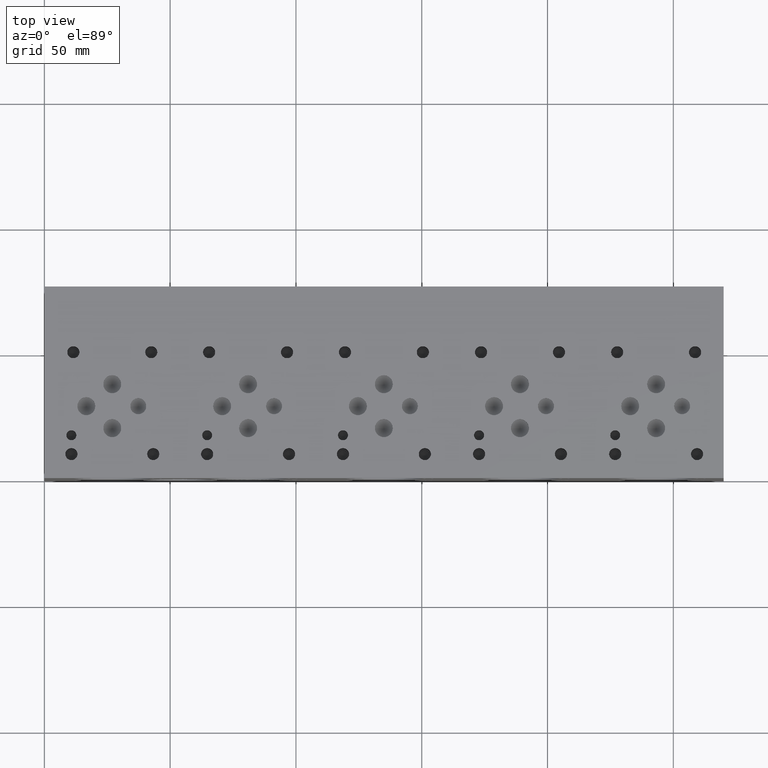
[diagram: clean part render]
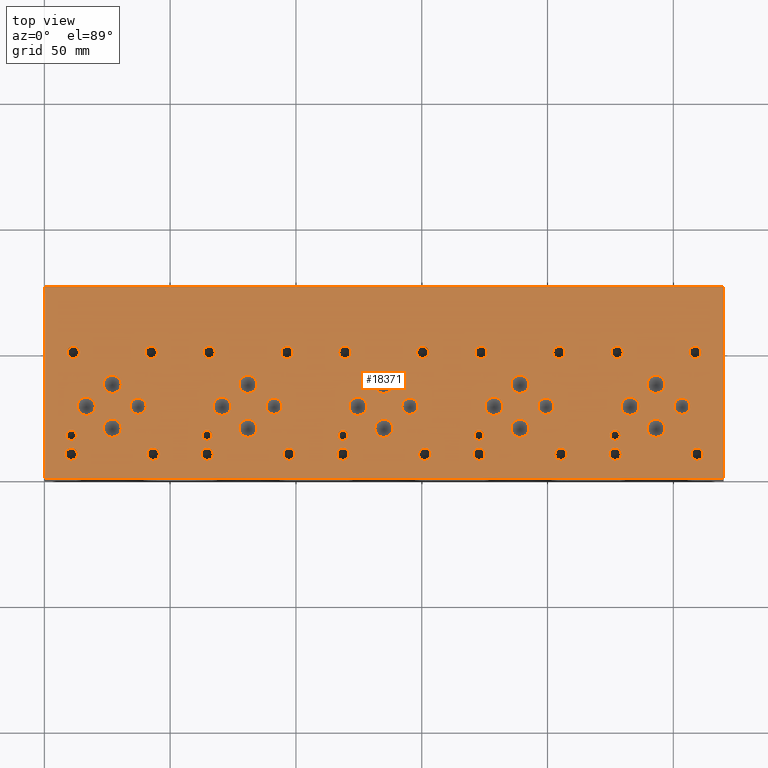
[diagram: same view with one face highlighted and labeled with its STEP entity id]
A machine part, top view. The second image highlights one B-rep face of the part: STEP entity #18371.
In plain terms, the highlighted planar face has unit normal (0, 0, 1).
Its self-contained STEP definition (entity closure, byte-faithful):
#627=CIRCLE('',#19332,1.9812);
#628=CIRCLE('',#19333,1.9812);
#631=CIRCLE('',#19338,1.9812);
#632=CIRCLE('',#19339,1.9812);
#635=CIRCLE('',#19344,1.9812);
#636=CIRCLE('',#19345,1.9812);
#639=CIRCLE('',#19350,1.9812);
#640=CIRCLE('',#19351,1.9812);
#643=CIRCLE('',#19356,3.175);
#644=CIRCLE('',#19357,3.175);
#647=CIRCLE('',#19362,3.175);
#648=CIRCLE('',#19363,3.175);
#651=CIRCLE('',#19368,3.175);
#652=CIRCLE('',#19369,3.175);
#655=CIRCLE('',#19374,3.175);
#656=CIRCLE('',#19375,3.175);
#659=CIRCLE('',#19380,3.175);
#660=CIRCLE('',#19381,3.175);
#663=CIRCLE('',#19386,3.5687);
#664=CIRCLE('',#19387,3.5687);
#667=CIRCLE('',#19392,3.5687);
#668=CIRCLE('',#19393,3.5687);
#671=CIRCLE('',#19398,3.5687);
#672=CIRCLE('',#19399,3.5687);
#675=CIRCLE('',#19404,3.5687);
#676=CIRCLE('',#19405,3.5687);
#679=CIRCLE('',#19410,3.5687);
#680=CIRCLE('',#19411,3.5687);
#683=CIRCLE('',#19416,3.5687);
#684=CIRCLE('',#19417,3.5687);
#687=CIRCLE('',#19422,3.5687);
#688=CIRCLE('',#19423,3.5687);
#691=CIRCLE('',#19428,3.5687);
#692=CIRCLE('',#19429,3.5687);
#695=CIRCLE('',#19434,3.5687);
#696=CIRCLE('',#19435,3.5687);
#699=CIRCLE('',#19440,3.5687);
#700=CIRCLE('',#19441,3.5687);
#703=CIRCLE('',#19446,3.5687);
#704=CIRCLE('',#19447,3.5687);
#707=CIRCLE('',#19452,3.5687);
#708=CIRCLE('',#19453,3.5687);
#711=CIRCLE('',#19458,3.5687);
#712=CIRCLE('',#19459,3.5687);
#715=CIRCLE('',#19464,3.5687);
#716=CIRCLE('',#19465,3.5687);
#719=CIRCLE('',#19470,3.5687);
#720=CIRCLE('',#19471,3.5687);
#723=CIRCLE('',#19476,1.9812);
#724=CIRCLE('',#19477,1.9812);
#730=CIRCLE('',#19486,2.413);
#731=CIRCLE('',#19487,2.413);
#737=CIRCLE('',#19497,2.413);
#738=CIRCLE('',#19498,2.413);
#744=CIRCLE('',#19508,2.413);
#745=CIRCLE('',#19509,2.413);
#751=CIRCLE('',#19519,2.413);
#752=CIRCLE('',#19520,2.413);
#758=CIRCLE('',#19530,2.413);
#759=CIRCLE('',#19531,2.413);
#765=CIRCLE('',#19541,2.413);
#766=CIRCLE('',#19542,2.413);
#772=CIRCLE('',#19552,2.413);
#773=CIRCLE('',#19553,2.413);
#779=CIRCLE('',#19563,2.413);
#780=CIRCLE('',#19564,2.413);
#786=CIRCLE('',#19574,2.413);
#787=CIRCLE('',#19575,2.413);
#793=CIRCLE('',#19585,2.413);
#794=CIRCLE('',#19586,2.413);
#800=CIRCLE('',#19596,2.413);
#801=CIRCLE('',#19597,2.413);
#807=CIRCLE('',#19607,2.413);
#808=CIRCLE('',#19608,2.413);
#814=CIRCLE('',#19618,2.413);
#815=CIRCLE('',#19619,2.413);
#821=CIRCLE('',#19629,2.413);
#822=CIRCLE('',#19630,2.413);
#828=CIRCLE('',#19640,2.413);
#829=CIRCLE('',#19641,2.413);
#835=CIRCLE('',#19651,2.413);
#836=CIRCLE('',#19652,2.413);
#842=CIRCLE('',#19662,2.413);
#843=CIRCLE('',#19663,2.413);
#849=CIRCLE('',#19673,2.413);
#850=CIRCLE('',#19674,2.413);
#856=CIRCLE('',#19684,2.413);
#857=CIRCLE('',#19685,2.413);
#863=CIRCLE('',#19695,2.413);
#864=CIRCLE('',#19696,2.413);
#1002=FACE_BOUND('',#3766,.T.);
#1003=FACE_BOUND('',#3767,.T.);
#1004=FACE_BOUND('',#3768,.T.);
#1005=FACE_BOUND('',#3769,.T.);
#1006=FACE_BOUND('',#3770,.T.);
#1007=FACE_BOUND('',#3771,.T.);
#1008=FACE_BOUND('',#3772,.T.);
#1009=FACE_BOUND('',#3773,.T.);
#1010=FACE_BOUND('',#3774,.T.);
#1011=FACE_BOUND('',#3775,.T.);
#1012=FACE_BOUND('',#3776,.T.);
#1013=FACE_BOUND('',#3777,.T.);
#1014=FACE_BOUND('',#3778,.T.);
#1015=FACE_BOUND('',#3779,.T.);
#1016=FACE_BOUND('',#3780,.T.);
#1017=FACE_BOUND('',#3781,.T.);
#1018=FACE_BOUND('',#3782,.T.);
#1019=FACE_BOUND('',#3783,.T.);
#1020=FACE_BOUND('',#3784,.T.);
#1021=FACE_BOUND('',#3785,.T.);
#1022=FACE_BOUND('',#3786,.T.);
#1023=FACE_BOUND('',#3787,.T.);
#1024=FACE_BOUND('',#3788,.T.);
#1025=FACE_BOUND('',#3789,.T.);
#1026=FACE_BOUND('',#3790,.T.);
#1027=FACE_BOUND('',#3791,.T.);
#1028=FACE_BOUND('',#3792,.T.);
#1029=FACE_BOUND('',#3793,.T.);
#1030=FACE_BOUND('',#3794,.T.);
#1031=FACE_BOUND('',#3795,.T.);
#1032=FACE_BOUND('',#3796,.T.);
#1033=FACE_BOUND('',#3797,.T.);
#1034=FACE_BOUND('',#3798,.T.);
#1035=FACE_BOUND('',#3799,.T.);
#1036=FACE_BOUND('',#3800,.T.);
#1037=FACE_BOUND('',#3801,.T.);
#1038=FACE_BOUND('',#3802,.T.);
#1039=FACE_BOUND('',#3803,.T.);
#1040=FACE_BOUND('',#3804,.T.);
#1041=FACE_BOUND('',#3805,.T.);
#1042=FACE_BOUND('',#3806,.T.);
#1043=FACE_BOUND('',#3807,.T.);
#1044=FACE_BOUND('',#3808,.T.);
#1045=FACE_BOUND('',#3809,.T.);
#1046=FACE_BOUND('',#3810,.T.);
#2671=FACE_OUTER_BOUND('',#3765,.T.);
#3765=EDGE_LOOP('',(#16249,#16250,#16251,#16252));
#3766=EDGE_LOOP('',(#16253,#16254));
#3767=EDGE_LOOP('',(#16255,#16256));
#3768=EDGE_LOOP('',(#16257,#16258));
#3769=EDGE_LOOP('',(#16259,#16260));
#3770=EDGE_LOOP('',(#16261,#16262));
#3771=EDGE_LOOP('',(#16263,#16264));
#3772=EDGE_LOOP('',(#16265,#16266));
#3773=EDGE_LOOP('',(#16267,#16268));
#3774=EDGE_LOOP('',(#16269,#16270));
#3775=EDGE_LOOP('',(#16271,#16272));
#3776=EDGE_LOOP('',(#16273,#16274));
#3777=EDGE_LOOP('',(#16275,#16276));
#3778=EDGE_LOOP('',(#16277,#16278));
#3779=EDGE_LOOP('',(#16279,#16280));
#3780=EDGE_LOOP('',(#16281,#16282));
#3781=EDGE_LOOP('',(#16283,#16284));
#3782=EDGE_LOOP('',(#16285,#16286));
#3783=EDGE_LOOP('',(#16287,#16288));
#3784=EDGE_LOOP('',(#16289,#16290));
#3785=EDGE_LOOP('',(#16291,#16292));
#3786=EDGE_LOOP('',(#16293,#16294));
#3787=EDGE_LOOP('',(#16295,#16296));
#3788=EDGE_LOOP('',(#16297,#16298));
#3789=EDGE_LOOP('',(#16299,#16300));
#3790=EDGE_LOOP('',(#16301,#16302));
#3791=EDGE_LOOP('',(#16303,#16304));
#3792=EDGE_LOOP('',(#16305,#16306));
#3793=EDGE_LOOP('',(#16307,#16308));
#3794=EDGE_LOOP('',(#16309,#16310));
#3795=EDGE_LOOP('',(#16311,#16312));
#3796=EDGE_LOOP('',(#16313,#16314));
#3797=EDGE_LOOP('',(#16315,#16316));
#3798=EDGE_LOOP('',(#16317,#16318));
#3799=EDGE_LOOP('',(#16319,#16320));
#3800=EDGE_LOOP('',(#16321,#16322));
#3801=EDGE_LOOP('',(#16323,#16324));
#3802=EDGE_LOOP('',(#16325,#16326));
#3803=EDGE_LOOP('',(#16327,#16328));
#3804=EDGE_LOOP('',(#16329,#16330));
#3805=EDGE_LOOP('',(#16331,#16332));
#3806=EDGE_LOOP('',(#16333,#16334));
#3807=EDGE_LOOP('',(#16335,#16336));
#3808=EDGE_LOOP('',(#16337,#16338));
#3809=EDGE_LOOP('',(#16339,#16340));
#3810=EDGE_LOOP('',(#16341,#16342));
#3870=LINE('',#24130,#5402);
#3930=LINE('',#24405,#5462);
#4243=LINE('',#27011,#5775);
#5343=LINE('',#32073,#6875);
#5402=VECTOR('',#19802,10.);
#5462=VECTOR('',#19916,10.);
#5775=VECTOR('',#20399,10.);
#6875=VECTOR('',#23863,10.);
#6926=VERTEX_POINT('',#24127);
#6927=VERTEX_POINT('',#24129);
#6986=VERTEX_POINT('',#24402);
#6987=VERTEX_POINT('',#24404);
#8382=VERTEX_POINT('',#31313);
#8383=VERTEX_POINT('',#31314);
#8387=VERTEX_POINT('',#31326);
#8388=VERTEX_POINT('',#31327);
#8392=VERTEX_POINT('',#31339);
#8393=VERTEX_POINT('',#31340);
#8397=VERTEX_POINT('',#31352);
#8398=VERTEX_POINT('',#31353);
#8402=VERTEX_POINT('',#31365);
#8403=VERTEX_POINT('',#31366);
#8407=VERTEX_POINT('',#31378);
#8408=VERTEX_POINT('',#31379);
#8412=VERTEX_POINT('',#31391);
#8413=VERTEX_POINT('',#31392);
#8417=VERTEX_POINT('',#31404);
#8418=VERTEX_POINT('',#31405);
#8422=VERTEX_POINT('',#31417);
#8423=VERTEX_POINT('',#31418);
#8427=VERTEX_POINT('',#31430);
#8428=VERTEX_POINT('',#31431);
#8432=VERTEX_POINT('',#31443);
#8433=VERTEX_POINT('',#31444);
#8437=VERTEX_POINT('',#31456);
#8438=VERTEX_POINT('',#31457);
#8442=VERTEX_POINT('',#31469);
#8443=VERTEX_POINT('',#31470);
#8447=VERTEX_POINT('',#31482);
#8448=VERTEX_POINT('',#31483);
#8452=VERTEX_POINT('',#31495);
#8453=VERTEX_POINT('',#31496);
#8457=VERTEX_POINT('',#31508);
#8458=VERTEX_POINT('',#31509);
#8462=VERTEX_POINT('',#31521);
#8463=VERTEX_POINT('',#31522);
#8467=VERTEX_POINT('',#31534);
#8468=VERTEX_POINT('',#31535);
#8472=VERTEX_POINT('',#31547);
#8473=VERTEX_POINT('',#31548);
#8477=VERTEX_POINT('',#31560);
#8478=VERTEX_POINT('',#31561);
#8482=VERTEX_POINT('',#31573);
#8483=VERTEX_POINT('',#31574);
#8487=VERTEX_POINT('',#31586);
#8488=VERTEX_POINT('',#31587);
#8492=VERTEX_POINT('',#31599);
#8493=VERTEX_POINT('',#31600);
#8497=VERTEX_POINT('',#31612);
#8498=VERTEX_POINT('',#31613);
#8502=VERTEX_POINT('',#31625);
#8503=VERTEX_POINT('',#31626);
#8510=VERTEX_POINT('',#31645);
#8511=VERTEX_POINT('',#31646);
#8518=VERTEX_POINT('',#31667);
#8519=VERTEX_POINT('',#31668);
#8526=VERTEX_POINT('',#31689);
#8527=VERTEX_POINT('',#31690);
#8534=VERTEX_POINT('',#31711);
#8535=VERTEX_POINT('',#31712);
#8542=VERTEX_POINT('',#31733);
#8543=VERTEX_POINT('',#31734);
#8550=VERTEX_POINT('',#31755);
#8551=VERTEX_POINT('',#31756);
#8558=VERTEX_POINT('',#31777);
#8559=VERTEX_POINT('',#31778);
#8566=VERTEX_POINT('',#31799);
#8567=VERTEX_POINT('',#31800);
#8574=VERTEX_POINT('',#31821);
#8575=VERTEX_POINT('',#31822);
#8582=VERTEX_POINT('',#31843);
#8583=VERTEX_POINT('',#31844);
#8590=VERTEX_POINT('',#31865);
#8591=VERTEX_POINT('',#31866);
#8598=VERTEX_POINT('',#31887);
#8599=VERTEX_POINT('',#31888);
#8606=VERTEX_POINT('',#31909);
#8607=VERTEX_POINT('',#31910);
#8614=VERTEX_POINT('',#31931);
#8615=VERTEX_POINT('',#31932);
#8622=VERTEX_POINT('',#31953);
#8623=VERTEX_POINT('',#31954);
#8630=VERTEX_POINT('',#31975);
#8631=VERTEX_POINT('',#31976);
#8638=VERTEX_POINT('',#31997);
#8639=VERTEX_POINT('',#31998);
#8646=VERTEX_POINT('',#32019);
#8647=VERTEX_POINT('',#32020);
#8654=VERTEX_POINT('',#32041);
#8655=VERTEX_POINT('',#32042);
#8662=VERTEX_POINT('',#32063);
#8663=VERTEX_POINT('',#32064);
#8738=EDGE_CURVE('',#6927,#6926,#3870,.T.);
#8822=EDGE_CURVE('',#6987,#6986,#3930,.T.);
#9373=EDGE_CURVE('',#6986,#6927,#4243,.T.);
#10876=EDGE_CURVE('',#8382,#8383,#627,.T.);
#10877=EDGE_CURVE('',#8383,#8382,#628,.T.);
#10882=EDGE_CURVE('',#8387,#8388,#631,.T.);
#10883=EDGE_CURVE('',#8388,#8387,#632,.T.);
#10888=EDGE_CURVE('',#8392,#8393,#635,.T.);
#10889=EDGE_CURVE('',#8393,#8392,#636,.T.);
#10894=EDGE_CURVE('',#8397,#8398,#639,.T.);
#10895=EDGE_CURVE('',#8398,#8397,#640,.T.);
#10900=EDGE_CURVE('',#8402,#8403,#643,.T.);
#10901=EDGE_CURVE('',#8403,#8402,#644,.T.);
#10906=EDGE_CURVE('',#8407,#8408,#647,.T.);
#10907=EDGE_CURVE('',#8408,#8407,#648,.T.);
#10912=EDGE_CURVE('',#8412,#8413,#651,.T.);
#10913=EDGE_CURVE('',#8413,#8412,#652,.T.);
#10918=EDGE_CURVE('',#8417,#8418,#655,.T.);
#10919=EDGE_CURVE('',#8418,#8417,#656,.T.);
#10924=EDGE_CURVE('',#8422,#8423,#659,.T.);
#10925=EDGE_CURVE('',#8423,#8422,#660,.T.);
#10930=EDGE_CURVE('',#8427,#8428,#663,.T.);
#10931=EDGE_CURVE('',#8428,#8427,#664,.T.);
#10936=EDGE_CURVE('',#8432,#8433,#667,.T.);
#10937=EDGE_CURVE('',#8433,#8432,#668,.T.);
#10942=EDGE_CURVE('',#8437,#8438,#671,.T.);
#10943=EDGE_CURVE('',#8438,#8437,#672,.T.);
#10948=EDGE_CURVE('',#8442,#8443,#675,.T.);
#10949=EDGE_CURVE('',#8443,#8442,#676,.T.);
#10954=EDGE_CURVE('',#8447,#8448,#679,.T.);
#10955=EDGE_CURVE('',#8448,#8447,#680,.T.);
#10960=EDGE_CURVE('',#8452,#8453,#683,.T.);
#10961=EDGE_CURVE('',#8453,#8452,#684,.T.);
#10966=EDGE_CURVE('',#8457,#8458,#687,.T.);
#10967=EDGE_CURVE('',#8458,#8457,#688,.T.);
#10972=EDGE_CURVE('',#8462,#8463,#691,.T.);
#10973=EDGE_CURVE('',#8463,#8462,#692,.T.);
#10978=EDGE_CURVE('',#8467,#8468,#695,.T.);
#10979=EDGE_CURVE('',#8468,#8467,#696,.T.);
#10984=EDGE_CURVE('',#8472,#8473,#699,.T.);
#10985=EDGE_CURVE('',#8473,#8472,#700,.T.);
#10990=EDGE_CURVE('',#8477,#8478,#703,.T.);
#10991=EDGE_CURVE('',#8478,#8477,#704,.T.);
#10996=EDGE_CURVE('',#8482,#8483,#707,.T.);
#10997=EDGE_CURVE('',#8483,#8482,#708,.T.);
#11002=EDGE_CURVE('',#8487,#8488,#711,.T.);
#11003=EDGE_CURVE('',#8488,#8487,#712,.T.);
#11008=EDGE_CURVE('',#8492,#8493,#715,.T.);
#11009=EDGE_CURVE('',#8493,#8492,#716,.T.);
#11014=EDGE_CURVE('',#8497,#8498,#719,.T.);
#11015=EDGE_CURVE('',#8498,#8497,#720,.T.);
#11020=EDGE_CURVE('',#8502,#8503,#723,.T.);
#11021=EDGE_CURVE('',#8503,#8502,#724,.T.);
#11029=EDGE_CURVE('',#8510,#8511,#730,.T.);
#11030=EDGE_CURVE('',#8511,#8510,#731,.T.);
#11039=EDGE_CURVE('',#8518,#8519,#737,.T.);
#11040=EDGE_CURVE('',#8519,#8518,#738,.T.);
#11049=EDGE_CURVE('',#8526,#8527,#744,.T.);
#11050=EDGE_CURVE('',#8527,#8526,#745,.T.);
#11059=EDGE_CURVE('',#8534,#8535,#751,.T.);
#11060=EDGE_CURVE('',#8535,#8534,#752,.T.);
#11069=EDGE_CURVE('',#8542,#8543,#758,.T.);
#11070=EDGE_CURVE('',#8543,#8542,#759,.T.);
#11079=EDGE_CURVE('',#8550,#8551,#765,.T.);
#11080=EDGE_CURVE('',#8551,#8550,#766,.T.);
#11089=EDGE_CURVE('',#8558,#8559,#772,.T.);
#11090=EDGE_CURVE('',#8559,#8558,#773,.T.);
#11099=EDGE_CURVE('',#8566,#8567,#779,.T.);
#11100=EDGE_CURVE('',#8567,#8566,#780,.T.);
#11109=EDGE_CURVE('',#8574,#8575,#786,.T.);
#11110=EDGE_CURVE('',#8575,#8574,#787,.T.);
#11119=EDGE_CURVE('',#8582,#8583,#793,.T.);
#11120=EDGE_CURVE('',#8583,#8582,#794,.T.);
#11129=EDGE_CURVE('',#8590,#8591,#800,.T.);
#11130=EDGE_CURVE('',#8591,#8590,#801,.T.);
#11139=EDGE_CURVE('',#8598,#8599,#807,.T.);
#11140=EDGE_CURVE('',#8599,#8598,#808,.T.);
#11149=EDGE_CURVE('',#8606,#8607,#814,.T.);
#11150=EDGE_CURVE('',#8607,#8606,#815,.T.);
#11159=EDGE_CURVE('',#8614,#8615,#821,.T.);
#11160=EDGE_CURVE('',#8615,#8614,#822,.T.);
#11169=EDGE_CURVE('',#8622,#8623,#828,.T.);
#11170=EDGE_CURVE('',#8623,#8622,#829,.T.);
#11179=EDGE_CURVE('',#8630,#8631,#835,.T.);
#11180=EDGE_CURVE('',#8631,#8630,#836,.T.);
#11189=EDGE_CURVE('',#8638,#8639,#842,.T.);
#11190=EDGE_CURVE('',#8639,#8638,#843,.T.);
#11199=EDGE_CURVE('',#8646,#8647,#849,.T.);
#11200=EDGE_CURVE('',#8647,#8646,#850,.T.);
#11209=EDGE_CURVE('',#8654,#8655,#856,.T.);
#11210=EDGE_CURVE('',#8655,#8654,#857,.T.);
#11219=EDGE_CURVE('',#8662,#8663,#863,.T.);
#11220=EDGE_CURVE('',#8663,#8662,#864,.T.);
#11224=EDGE_CURVE('',#6926,#6987,#5343,.T.);
#16249=ORIENTED_EDGE('',*,*,#9373,.T.);
#16250=ORIENTED_EDGE('',*,*,#8738,.T.);
#16251=ORIENTED_EDGE('',*,*,#11224,.T.);
#16252=ORIENTED_EDGE('',*,*,#8822,.T.);
#16253=ORIENTED_EDGE('',*,*,#10876,.T.);
#16254=ORIENTED_EDGE('',*,*,#10877,.T.);
#16255=ORIENTED_EDGE('',*,*,#10882,.T.);
#16256=ORIENTED_EDGE('',*,*,#10883,.T.);
#16257=ORIENTED_EDGE('',*,*,#10888,.T.);
#16258=ORIENTED_EDGE('',*,*,#10889,.T.);
#16259=ORIENTED_EDGE('',*,*,#10894,.T.);
#16260=ORIENTED_EDGE('',*,*,#10895,.T.);
#16261=ORIENTED_EDGE('',*,*,#10900,.T.);
#16262=ORIENTED_EDGE('',*,*,#10901,.T.);
#16263=ORIENTED_EDGE('',*,*,#10906,.T.);
#16264=ORIENTED_EDGE('',*,*,#10907,.T.);
#16265=ORIENTED_EDGE('',*,*,#10912,.T.);
#16266=ORIENTED_EDGE('',*,*,#10913,.T.);
#16267=ORIENTED_EDGE('',*,*,#10918,.T.);
#16268=ORIENTED_EDGE('',*,*,#10919,.T.);
#16269=ORIENTED_EDGE('',*,*,#10924,.T.);
#16270=ORIENTED_EDGE('',*,*,#10925,.T.);
#16271=ORIENTED_EDGE('',*,*,#10930,.T.);
#16272=ORIENTED_EDGE('',*,*,#10931,.T.);
#16273=ORIENTED_EDGE('',*,*,#10936,.T.);
#16274=ORIENTED_EDGE('',*,*,#10937,.T.);
#16275=ORIENTED_EDGE('',*,*,#10942,.T.);
#16276=ORIENTED_EDGE('',*,*,#10943,.T.);
#16277=ORIENTED_EDGE('',*,*,#10948,.T.);
#16278=ORIENTED_EDGE('',*,*,#10949,.T.);
#16279=ORIENTED_EDGE('',*,*,#10954,.T.);
#16280=ORIENTED_EDGE('',*,*,#10955,.T.);
#16281=ORIENTED_EDGE('',*,*,#10960,.T.);
#16282=ORIENTED_EDGE('',*,*,#10961,.T.);
#16283=ORIENTED_EDGE('',*,*,#10966,.T.);
#16284=ORIENTED_EDGE('',*,*,#10967,.T.);
#16285=ORIENTED_EDGE('',*,*,#10972,.T.);
#16286=ORIENTED_EDGE('',*,*,#10973,.T.);
#16287=ORIENTED_EDGE('',*,*,#10978,.T.);
#16288=ORIENTED_EDGE('',*,*,#10979,.T.);
#16289=ORIENTED_EDGE('',*,*,#10984,.T.);
#16290=ORIENTED_EDGE('',*,*,#10985,.T.);
#16291=ORIENTED_EDGE('',*,*,#10990,.T.);
#16292=ORIENTED_EDGE('',*,*,#10991,.T.);
#16293=ORIENTED_EDGE('',*,*,#10996,.T.);
#16294=ORIENTED_EDGE('',*,*,#10997,.T.);
#16295=ORIENTED_EDGE('',*,*,#11002,.T.);
#16296=ORIENTED_EDGE('',*,*,#11003,.T.);
#16297=ORIENTED_EDGE('',*,*,#11008,.T.);
#16298=ORIENTED_EDGE('',*,*,#11009,.T.);
#16299=ORIENTED_EDGE('',*,*,#11014,.T.);
#16300=ORIENTED_EDGE('',*,*,#11015,.T.);
#16301=ORIENTED_EDGE('',*,*,#11020,.T.);
#16302=ORIENTED_EDGE('',*,*,#11021,.T.);
#16303=ORIENTED_EDGE('',*,*,#11029,.T.);
#16304=ORIENTED_EDGE('',*,*,#11030,.T.);
#16305=ORIENTED_EDGE('',*,*,#11039,.T.);
#16306=ORIENTED_EDGE('',*,*,#11040,.T.);
#16307=ORIENTED_EDGE('',*,*,#11049,.T.);
#16308=ORIENTED_EDGE('',*,*,#11050,.T.);
#16309=ORIENTED_EDGE('',*,*,#11059,.T.);
#16310=ORIENTED_EDGE('',*,*,#11060,.T.);
#16311=ORIENTED_EDGE('',*,*,#11069,.T.);
#16312=ORIENTED_EDGE('',*,*,#11070,.T.);
#16313=ORIENTED_EDGE('',*,*,#11079,.T.);
#16314=ORIENTED_EDGE('',*,*,#11080,.T.);
#16315=ORIENTED_EDGE('',*,*,#11089,.T.);
#16316=ORIENTED_EDGE('',*,*,#11090,.T.);
#16317=ORIENTED_EDGE('',*,*,#11099,.T.);
#16318=ORIENTED_EDGE('',*,*,#11100,.T.);
#16319=ORIENTED_EDGE('',*,*,#11109,.T.);
#16320=ORIENTED_EDGE('',*,*,#11110,.T.);
#16321=ORIENTED_EDGE('',*,*,#11119,.T.);
#16322=ORIENTED_EDGE('',*,*,#11120,.T.);
#16323=ORIENTED_EDGE('',*,*,#11129,.T.);
#16324=ORIENTED_EDGE('',*,*,#11130,.T.);
#16325=ORIENTED_EDGE('',*,*,#11139,.T.);
#16326=ORIENTED_EDGE('',*,*,#11140,.T.);
#16327=ORIENTED_EDGE('',*,*,#11149,.T.);
#16328=ORIENTED_EDGE('',*,*,#11150,.T.);
#16329=ORIENTED_EDGE('',*,*,#11159,.T.);
#16330=ORIENTED_EDGE('',*,*,#11160,.T.);
#16331=ORIENTED_EDGE('',*,*,#11169,.T.);
#16332=ORIENTED_EDGE('',*,*,#11170,.T.);
#16333=ORIENTED_EDGE('',*,*,#11179,.T.);
#16334=ORIENTED_EDGE('',*,*,#11180,.T.);
#16335=ORIENTED_EDGE('',*,*,#11189,.T.);
#16336=ORIENTED_EDGE('',*,*,#11190,.T.);
#16337=ORIENTED_EDGE('',*,*,#11199,.T.);
#16338=ORIENTED_EDGE('',*,*,#11200,.T.);
#16339=ORIENTED_EDGE('',*,*,#11209,.T.);
#16340=ORIENTED_EDGE('',*,*,#11210,.T.);
#16341=ORIENTED_EDGE('',*,*,#11219,.T.);
#16342=ORIENTED_EDGE('',*,*,#11220,.T.);
#16811=PLANE('',#19702);
#18371=ADVANCED_FACE('',(#2671,#1002,#1003,#1004,#1005,#1006,#1007,#1008,
#1009,#1010,#1011,#1012,#1013,#1014,#1015,#1016,#1017,#1018,#1019,#1020,
#1021,#1022,#1023,#1024,#1025,#1026,#1027,#1028,#1029,#1030,#1031,#1032,
#1033,#1034,#1035,#1036,#1037,#1038,#1039,#1040,#1041,#1042,#1043,#1044,
#1045,#1046),#16811,.T.);
#19332=AXIS2_PLACEMENT_3D('',#31315,#23017,#23018);
#19333=AXIS2_PLACEMENT_3D('',#31316,#23019,#23020);
#19338=AXIS2_PLACEMENT_3D('',#31328,#23031,#23032);
#19339=AXIS2_PLACEMENT_3D('',#31329,#23033,#23034);
#19344=AXIS2_PLACEMENT_3D('',#31341,#23045,#23046);
#19345=AXIS2_PLACEMENT_3D('',#31342,#23047,#23048);
#19350=AXIS2_PLACEMENT_3D('',#31354,#23059,#23060);
#19351=AXIS2_PLACEMENT_3D('',#31355,#23061,#23062);
#19356=AXIS2_PLACEMENT_3D('',#31367,#23073,#23074);
#19357=AXIS2_PLACEMENT_3D('',#31368,#23075,#23076);
#19362=AXIS2_PLACEMENT_3D('',#31380,#23087,#23088);
#19363=AXIS2_PLACEMENT_3D('',#31381,#23089,#23090);
#19368=AXIS2_PLACEMENT_3D('',#31393,#23101,#23102);
#19369=AXIS2_PLACEMENT_3D('',#31394,#23103,#23104);
#19374=AXIS2_PLACEMENT_3D('',#31406,#23115,#23116);
#19375=AXIS2_PLACEMENT_3D('',#31407,#23117,#23118);
#19380=AXIS2_PLACEMENT_3D('',#31419,#23129,#23130);
#19381=AXIS2_PLACEMENT_3D('',#31420,#23131,#23132);
#19386=AXIS2_PLACEMENT_3D('',#31432,#23143,#23144);
#19387=AXIS2_PLACEMENT_3D('',#31433,#23145,#23146);
#19392=AXIS2_PLACEMENT_3D('',#31445,#23157,#23158);
#19393=AXIS2_PLACEMENT_3D('',#31446,#23159,#23160);
#19398=AXIS2_PLACEMENT_3D('',#31458,#23171,#23172);
#19399=AXIS2_PLACEMENT_3D('',#31459,#23173,#23174);
#19404=AXIS2_PLACEMENT_3D('',#31471,#23185,#23186);
#19405=AXIS2_PLACEMENT_3D('',#31472,#23187,#23188);
#19410=AXIS2_PLACEMENT_3D('',#31484,#23199,#23200);
#19411=AXIS2_PLACEMENT_3D('',#31485,#23201,#23202);
#19416=AXIS2_PLACEMENT_3D('',#31497,#23213,#23214);
#19417=AXIS2_PLACEMENT_3D('',#31498,#23215,#23216);
#19422=AXIS2_PLACEMENT_3D('',#31510,#23227,#23228);
#19423=AXIS2_PLACEMENT_3D('',#31511,#23229,#23230);
#19428=AXIS2_PLACEMENT_3D('',#31523,#23241,#23242);
#19429=AXIS2_PLACEMENT_3D('',#31524,#23243,#23244);
#19434=AXIS2_PLACEMENT_3D('',#31536,#23255,#23256);
#19435=AXIS2_PLACEMENT_3D('',#31537,#23257,#23258);
#19440=AXIS2_PLACEMENT_3D('',#31549,#23269,#23270);
#19441=AXIS2_PLACEMENT_3D('',#31550,#23271,#23272);
#19446=AXIS2_PLACEMENT_3D('',#31562,#23283,#23284);
#19447=AXIS2_PLACEMENT_3D('',#31563,#23285,#23286);
#19452=AXIS2_PLACEMENT_3D('',#31575,#23297,#23298);
#19453=AXIS2_PLACEMENT_3D('',#31576,#23299,#23300);
#19458=AXIS2_PLACEMENT_3D('',#31588,#23311,#23312);
#19459=AXIS2_PLACEMENT_3D('',#31589,#23313,#23314);
#19464=AXIS2_PLACEMENT_3D('',#31601,#23325,#23326);
#19465=AXIS2_PLACEMENT_3D('',#31602,#23327,#23328);
#19470=AXIS2_PLACEMENT_3D('',#31614,#23339,#23340);
#19471=AXIS2_PLACEMENT_3D('',#31615,#23341,#23342);
#19476=AXIS2_PLACEMENT_3D('',#31627,#23353,#23354);
#19477=AXIS2_PLACEMENT_3D('',#31628,#23355,#23356);
#19486=AXIS2_PLACEMENT_3D('',#31647,#23375,#23376);
#19487=AXIS2_PLACEMENT_3D('',#31648,#23377,#23378);
#19497=AXIS2_PLACEMENT_3D('',#31669,#23400,#23401);
#19498=AXIS2_PLACEMENT_3D('',#31670,#23402,#23403);
#19508=AXIS2_PLACEMENT_3D('',#31691,#23425,#23426);
#19509=AXIS2_PLACEMENT_3D('',#31692,#23427,#23428);
#19519=AXIS2_PLACEMENT_3D('',#31713,#23450,#23451);
#19520=AXIS2_PLACEMENT_3D('',#31714,#23452,#23453);
#19530=AXIS2_PLACEMENT_3D('',#31735,#23475,#23476);
#19531=AXIS2_PLACEMENT_3D('',#31736,#23477,#23478);
#19541=AXIS2_PLACEMENT_3D('',#31757,#23500,#23501);
#19542=AXIS2_PLACEMENT_3D('',#31758,#23502,#23503);
#19552=AXIS2_PLACEMENT_3D('',#31779,#23525,#23526);
#19553=AXIS2_PLACEMENT_3D('',#31780,#23527,#23528);
#19563=AXIS2_PLACEMENT_3D('',#31801,#23550,#23551);
#19564=AXIS2_PLACEMENT_3D('',#31802,#23552,#23553);
#19574=AXIS2_PLACEMENT_3D('',#31823,#23575,#23576);
#19575=AXIS2_PLACEMENT_3D('',#31824,#23577,#23578);
#19585=AXIS2_PLACEMENT_3D('',#31845,#23600,#23601);
#19586=AXIS2_PLACEMENT_3D('',#31846,#23602,#23603);
#19596=AXIS2_PLACEMENT_3D('',#31867,#23625,#23626);
#19597=AXIS2_PLACEMENT_3D('',#31868,#23627,#23628);
#19607=AXIS2_PLACEMENT_3D('',#31889,#23650,#23651);
#19608=AXIS2_PLACEMENT_3D('',#31890,#23652,#23653);
#19618=AXIS2_PLACEMENT_3D('',#31911,#23675,#23676);
#19619=AXIS2_PLACEMENT_3D('',#31912,#23677,#23678);
#19629=AXIS2_PLACEMENT_3D('',#31933,#23700,#23701);
#19630=AXIS2_PLACEMENT_3D('',#31934,#23702,#23703);
#19640=AXIS2_PLACEMENT_3D('',#31955,#23725,#23726);
#19641=AXIS2_PLACEMENT_3D('',#31956,#23727,#23728);
#19651=AXIS2_PLACEMENT_3D('',#31977,#23750,#23751);
#19652=AXIS2_PLACEMENT_3D('',#31978,#23752,#23753);
#19662=AXIS2_PLACEMENT_3D('',#31999,#23775,#23776);
#19663=AXIS2_PLACEMENT_3D('',#32000,#23777,#23778);
#19673=AXIS2_PLACEMENT_3D('',#32021,#23800,#23801);
#19674=AXIS2_PLACEMENT_3D('',#32022,#23802,#23803);
#19684=AXIS2_PLACEMENT_3D('',#32043,#23825,#23826);
#19685=AXIS2_PLACEMENT_3D('',#32044,#23827,#23828);
#19695=AXIS2_PLACEMENT_3D('',#32065,#23850,#23851);
#19696=AXIS2_PLACEMENT_3D('',#32066,#23852,#23853);
#19702=AXIS2_PLACEMENT_3D('',#32076,#23868,#23869);
#19802=DIRECTION('',(0.,1.,0.));
#19916=DIRECTION('',(0.,-1.,0.));
#20399=DIRECTION('',(1.,0.,0.));
#23017=DIRECTION('center_axis',(0.,0.,-1.));
#23018=DIRECTION('ref_axis',(1.,0.,0.));
#23019=DIRECTION('center_axis',(0.,0.,-1.));
#23020=DIRECTION('ref_axis',(1.,0.,0.));
#23031=DIRECTION('center_axis',(0.,0.,-1.));
#23032=DIRECTION('ref_axis',(1.,0.,0.));
#23033=DIRECTION('center_axis',(0.,0.,-1.));
#23034=DIRECTION('ref_axis',(1.,0.,0.));
#23045=DIRECTION('center_axis',(0.,0.,-1.));
#23046=DIRECTION('ref_axis',(1.,0.,0.));
#23047=DIRECTION('center_axis',(0.,0.,-1.));
#23048=DIRECTION('ref_axis',(1.,0.,0.));
#23059=DIRECTION('center_axis',(0.,0.,-1.));
#23060=DIRECTION('ref_axis',(1.,0.,0.));
#23061=DIRECTION('center_axis',(0.,0.,-1.));
#23062=DIRECTION('ref_axis',(1.,0.,0.));
#23073=DIRECTION('center_axis',(0.,0.,-1.));
#23074=DIRECTION('ref_axis',(1.,0.,0.));
#23075=DIRECTION('center_axis',(0.,0.,-1.));
#23076=DIRECTION('ref_axis',(1.,0.,0.));
#23087=DIRECTION('center_axis',(0.,0.,-1.));
#23088=DIRECTION('ref_axis',(1.,0.,0.));
#23089=DIRECTION('center_axis',(0.,0.,-1.));
#23090=DIRECTION('ref_axis',(1.,0.,0.));
#23101=DIRECTION('center_axis',(0.,0.,-1.));
#23102=DIRECTION('ref_axis',(1.,0.,0.));
#23103=DIRECTION('center_axis',(0.,0.,-1.));
#23104=DIRECTION('ref_axis',(1.,0.,0.));
#23115=DIRECTION('center_axis',(0.,0.,-1.));
#23116=DIRECTION('ref_axis',(1.,0.,0.));
#23117=DIRECTION('center_axis',(0.,0.,-1.));
#23118=DIRECTION('ref_axis',(1.,0.,0.));
#23129=DIRECTION('center_axis',(0.,0.,-1.));
#23130=DIRECTION('ref_axis',(1.,0.,0.));
#23131=DIRECTION('center_axis',(0.,0.,-1.));
#23132=DIRECTION('ref_axis',(1.,0.,0.));
#23143=DIRECTION('center_axis',(0.,0.,-1.));
#23144=DIRECTION('ref_axis',(1.,0.,0.));
#23145=DIRECTION('center_axis',(0.,0.,-1.));
#23146=DIRECTION('ref_axis',(1.,0.,0.));
#23157=DIRECTION('center_axis',(0.,0.,-1.));
#23158=DIRECTION('ref_axis',(1.,0.,0.));
#23159=DIRECTION('center_axis',(0.,0.,-1.));
#23160=DIRECTION('ref_axis',(1.,0.,0.));
#23171=DIRECTION('center_axis',(0.,0.,-1.));
#23172=DIRECTION('ref_axis',(1.,0.,0.));
#23173=DIRECTION('center_axis',(0.,0.,-1.));
#23174=DIRECTION('ref_axis',(1.,0.,0.));
#23185=DIRECTION('center_axis',(0.,0.,-1.));
#23186=DIRECTION('ref_axis',(1.,0.,0.));
#23187=DIRECTION('center_axis',(0.,0.,-1.));
#23188=DIRECTION('ref_axis',(1.,0.,0.));
#23199=DIRECTION('center_axis',(0.,0.,-1.));
#23200=DIRECTION('ref_axis',(1.,0.,0.));
#23201=DIRECTION('center_axis',(0.,0.,-1.));
#23202=DIRECTION('ref_axis',(1.,0.,0.));
#23213=DIRECTION('center_axis',(0.,0.,-1.));
#23214=DIRECTION('ref_axis',(1.,0.,0.));
#23215=DIRECTION('center_axis',(0.,0.,-1.));
#23216=DIRECTION('ref_axis',(1.,0.,0.));
#23227=DIRECTION('center_axis',(0.,0.,-1.));
#23228=DIRECTION('ref_axis',(1.,0.,0.));
#23229=DIRECTION('center_axis',(0.,0.,-1.));
#23230=DIRECTION('ref_axis',(1.,0.,0.));
#23241=DIRECTION('center_axis',(0.,0.,-1.));
#23242=DIRECTION('ref_axis',(1.,0.,0.));
#23243=DIRECTION('center_axis',(0.,0.,-1.));
#23244=DIRECTION('ref_axis',(1.,0.,0.));
#23255=DIRECTION('center_axis',(0.,0.,-1.));
#23256=DIRECTION('ref_axis',(1.,0.,0.));
#23257=DIRECTION('center_axis',(0.,0.,-1.));
#23258=DIRECTION('ref_axis',(1.,0.,0.));
#23269=DIRECTION('center_axis',(0.,0.,-1.));
#23270=DIRECTION('ref_axis',(1.,0.,0.));
#23271=DIRECTION('center_axis',(0.,0.,-1.));
#23272=DIRECTION('ref_axis',(1.,0.,0.));
#23283=DIRECTION('center_axis',(0.,0.,-1.));
#23284=DIRECTION('ref_axis',(1.,0.,0.));
#23285=DIRECTION('center_axis',(0.,0.,-1.));
#23286=DIRECTION('ref_axis',(1.,0.,0.));
#23297=DIRECTION('center_axis',(0.,0.,-1.));
#23298=DIRECTION('ref_axis',(1.,0.,0.));
#23299=DIRECTION('center_axis',(0.,0.,-1.));
#23300=DIRECTION('ref_axis',(1.,0.,0.));
#23311=DIRECTION('center_axis',(0.,0.,-1.));
#23312=DIRECTION('ref_axis',(1.,0.,0.));
#23313=DIRECTION('center_axis',(0.,0.,-1.));
#23314=DIRECTION('ref_axis',(1.,0.,0.));
#23325=DIRECTION('center_axis',(0.,0.,-1.));
#23326=DIRECTION('ref_axis',(1.,0.,0.));
#23327=DIRECTION('center_axis',(0.,0.,-1.));
#23328=DIRECTION('ref_axis',(1.,0.,0.));
#23339=DIRECTION('center_axis',(0.,0.,-1.));
#23340=DIRECTION('ref_axis',(1.,0.,0.));
#23341=DIRECTION('center_axis',(0.,0.,-1.));
#23342=DIRECTION('ref_axis',(1.,0.,0.));
#23353=DIRECTION('center_axis',(0.,0.,-1.));
#23354=DIRECTION('ref_axis',(1.,0.,0.));
#23355=DIRECTION('center_axis',(0.,0.,-1.));
#23356=DIRECTION('ref_axis',(1.,0.,0.));
#23375=DIRECTION('center_axis',(0.,0.,-1.));
#23376=DIRECTION('ref_axis',(1.,0.,0.));
#23377=DIRECTION('center_axis',(0.,0.,-1.));
#23378=DIRECTION('ref_axis',(1.,0.,0.));
#23400=DIRECTION('center_axis',(0.,0.,-1.));
#23401=DIRECTION('ref_axis',(1.,0.,0.));
#23402=DIRECTION('center_axis',(0.,0.,-1.));
#23403=DIRECTION('ref_axis',(1.,0.,0.));
#23425=DIRECTION('center_axis',(0.,0.,-1.));
#23426=DIRECTION('ref_axis',(1.,0.,0.));
#23427=DIRECTION('center_axis',(0.,0.,-1.));
#23428=DIRECTION('ref_axis',(1.,0.,0.));
#23450=DIRECTION('center_axis',(0.,0.,-1.));
#23451=DIRECTION('ref_axis',(1.,0.,0.));
#23452=DIRECTION('center_axis',(0.,0.,-1.));
#23453=DIRECTION('ref_axis',(1.,0.,0.));
#23475=DIRECTION('center_axis',(0.,0.,-1.));
#23476=DIRECTION('ref_axis',(1.,0.,0.));
#23477=DIRECTION('center_axis',(0.,0.,-1.));
#23478=DIRECTION('ref_axis',(1.,0.,0.));
#23500=DIRECTION('center_axis',(0.,0.,-1.));
#23501=DIRECTION('ref_axis',(1.,0.,0.));
#23502=DIRECTION('center_axis',(0.,0.,-1.));
#23503=DIRECTION('ref_axis',(1.,0.,0.));
#23525=DIRECTION('center_axis',(0.,0.,-1.));
#23526=DIRECTION('ref_axis',(1.,0.,0.));
#23527=DIRECTION('center_axis',(0.,0.,-1.));
#23528=DIRECTION('ref_axis',(1.,0.,0.));
#23550=DIRECTION('center_axis',(0.,0.,-1.));
#23551=DIRECTION('ref_axis',(1.,0.,0.));
#23552=DIRECTION('center_axis',(0.,0.,-1.));
#23553=DIRECTION('ref_axis',(1.,0.,0.));
#23575=DIRECTION('center_axis',(0.,0.,-1.));
#23576=DIRECTION('ref_axis',(1.,0.,0.));
#23577=DIRECTION('center_axis',(0.,0.,-1.));
#23578=DIRECTION('ref_axis',(1.,0.,0.));
#23600=DIRECTION('center_axis',(0.,0.,-1.));
#23601=DIRECTION('ref_axis',(1.,0.,0.));
#23602=DIRECTION('center_axis',(0.,0.,-1.));
#23603=DIRECTION('ref_axis',(1.,0.,0.));
#23625=DIRECTION('center_axis',(0.,0.,-1.));
#23626=DIRECTION('ref_axis',(1.,0.,0.));
#23627=DIRECTION('center_axis',(0.,0.,-1.));
#23628=DIRECTION('ref_axis',(1.,0.,0.));
#23650=DIRECTION('center_axis',(0.,0.,-1.));
#23651=DIRECTION('ref_axis',(1.,0.,0.));
#23652=DIRECTION('center_axis',(0.,0.,-1.));
#23653=DIRECTION('ref_axis',(1.,0.,0.));
#23675=DIRECTION('center_axis',(0.,0.,-1.));
#23676=DIRECTION('ref_axis',(1.,0.,0.));
#23677=DIRECTION('center_axis',(0.,0.,-1.));
#23678=DIRECTION('ref_axis',(1.,0.,0.));
#23700=DIRECTION('center_axis',(0.,0.,-1.));
#23701=DIRECTION('ref_axis',(1.,0.,0.));
#23702=DIRECTION('center_axis',(0.,0.,-1.));
#23703=DIRECTION('ref_axis',(1.,0.,0.));
#23725=DIRECTION('center_axis',(0.,0.,-1.));
#23726=DIRECTION('ref_axis',(1.,0.,0.));
#23727=DIRECTION('center_axis',(0.,0.,-1.));
#23728=DIRECTION('ref_axis',(1.,0.,0.));
#23750=DIRECTION('center_axis',(0.,0.,-1.));
#23751=DIRECTION('ref_axis',(1.,0.,0.));
#23752=DIRECTION('center_axis',(0.,0.,-1.));
#23753=DIRECTION('ref_axis',(1.,0.,0.));
#23775=DIRECTION('center_axis',(0.,0.,-1.));
#23776=DIRECTION('ref_axis',(1.,0.,0.));
#23777=DIRECTION('center_axis',(0.,0.,-1.));
#23778=DIRECTION('ref_axis',(1.,0.,0.));
#23800=DIRECTION('center_axis',(0.,0.,-1.));
#23801=DIRECTION('ref_axis',(1.,0.,0.));
#23802=DIRECTION('center_axis',(0.,0.,-1.));
#23803=DIRECTION('ref_axis',(1.,0.,0.));
#23825=DIRECTION('center_axis',(0.,0.,-1.));
#23826=DIRECTION('ref_axis',(1.,0.,0.));
#23827=DIRECTION('center_axis',(0.,0.,-1.));
#23828=DIRECTION('ref_axis',(1.,0.,0.));
#23850=DIRECTION('center_axis',(0.,0.,-1.));
#23851=DIRECTION('ref_axis',(1.,0.,0.));
#23852=DIRECTION('center_axis',(0.,0.,-1.));
#23853=DIRECTION('ref_axis',(1.,0.,0.));
#23863=DIRECTION('',(-1.,0.,0.));
#23868=DIRECTION('center_axis',(0.,0.,1.));
#23869=DIRECTION('ref_axis',(1.,0.,0.));
#24127=CARTESIAN_POINT('',(270.002,76.2,76.2));
#24129=CARTESIAN_POINT('',(270.002,0.,76.2));
#24130=CARTESIAN_POINT('',(270.002,0.,76.2));
#24402=CARTESIAN_POINT('',(0.,0.,76.2));
#24404=CARTESIAN_POINT('',(0.,76.2,76.2));
#24405=CARTESIAN_POINT('',(0.,76.2,76.2));
#27011=CARTESIAN_POINT('',(0.,0.,76.2));
#31313=CARTESIAN_POINT('',(174.752,17.018,76.2));
#31314=CARTESIAN_POINT('',(170.7896,17.018,76.2));
#31315=CARTESIAN_POINT('Origin',(172.7708,17.018,76.2));
#31316=CARTESIAN_POINT('Origin',(172.7708,17.018,76.2));
#31326=CARTESIAN_POINT('',(66.675,17.018,76.2));
#31327=CARTESIAN_POINT('',(62.7126,17.018,76.2));
#31328=CARTESIAN_POINT('Origin',(64.6938,17.018,76.2));
#31329=CARTESIAN_POINT('Origin',(64.6938,17.018,76.2));
#31339=CARTESIAN_POINT('',(120.65,17.018,76.2));
#31340=CARTESIAN_POINT('',(116.6876,17.018,76.2));
#31341=CARTESIAN_POINT('Origin',(118.6688,17.018,76.2));
#31342=CARTESIAN_POINT('Origin',(118.6688,17.018,76.2));
#31352=CARTESIAN_POINT('',(228.854,17.018,76.2));
#31353=CARTESIAN_POINT('',(224.8916,17.018,76.2));
#31354=CARTESIAN_POINT('Origin',(226.8728,17.018,76.2));
#31355=CARTESIAN_POINT('Origin',(226.8728,17.018,76.2));
#31365=CARTESIAN_POINT('',(202.5396,28.575,76.2));
#31366=CARTESIAN_POINT('',(196.1896,28.575,76.2));
#31367=CARTESIAN_POINT('Origin',(199.3646,28.575,76.2));
#31368=CARTESIAN_POINT('Origin',(199.3646,28.575,76.2));
#31378=CARTESIAN_POINT('',(94.4626,28.575,76.2));
#31379=CARTESIAN_POINT('',(88.1126,28.575,76.2));
#31380=CARTESIAN_POINT('Origin',(91.2876,28.575,76.2));
#31381=CARTESIAN_POINT('Origin',(91.2876,28.575,76.2));
#31391=CARTESIAN_POINT('',(40.4876,28.575,76.2));
#31392=CARTESIAN_POINT('',(34.1376,28.575,76.2));
#31393=CARTESIAN_POINT('Origin',(37.3126,28.575,76.2));
#31394=CARTESIAN_POINT('Origin',(37.3126,28.575,76.2));
#31404=CARTESIAN_POINT('',(148.4376,28.575,76.2));
#31405=CARTESIAN_POINT('',(142.0876,28.575,76.2));
#31406=CARTESIAN_POINT('Origin',(145.2626,28.575,76.2));
#31407=CARTESIAN_POINT('Origin',(145.2626,28.575,76.2));
#31417=CARTESIAN_POINT('',(256.6416,28.575,76.2));
#31418=CARTESIAN_POINT('',(250.2916,28.575,76.2));
#31419=CARTESIAN_POINT('Origin',(253.4666,28.575,76.2));
#31420=CARTESIAN_POINT('Origin',(253.4666,28.575,76.2));
#31430=CARTESIAN_POINT('',(246.6975,37.3126,76.2));
#31431=CARTESIAN_POINT('',(239.5601,37.3126,76.2));
#31432=CARTESIAN_POINT('Origin',(243.1288,37.3126,76.2));
#31433=CARTESIAN_POINT('Origin',(243.1288,37.3126,76.2));
#31443=CARTESIAN_POINT('',(192.5955,19.8374,76.2));
#31444=CARTESIAN_POINT('',(185.4581,19.8374,76.2));
#31445=CARTESIAN_POINT('Origin',(189.0268,19.8374,76.2));
#31446=CARTESIAN_POINT('Origin',(189.0268,19.8374,76.2));
#31456=CARTESIAN_POINT('',(182.2831,28.575,76.2));
#31457=CARTESIAN_POINT('',(175.1457,28.575,76.2));
#31458=CARTESIAN_POINT('Origin',(178.7144,28.575,76.2));
#31459=CARTESIAN_POINT('Origin',(178.7144,28.575,76.2));
#31469=CARTESIAN_POINT('',(138.4935,37.3126,76.2));
#31470=CARTESIAN_POINT('',(131.3561,37.3126,76.2));
#31471=CARTESIAN_POINT('Origin',(134.9248,37.3126,76.2));
#31472=CARTESIAN_POINT('Origin',(134.9248,37.3126,76.2));
#31482=CARTESIAN_POINT('',(84.5185,19.8374,76.2));
#31483=CARTESIAN_POINT('',(77.3811,19.8374,76.2));
#31484=CARTESIAN_POINT('Origin',(80.9498,19.8374,76.2));
#31485=CARTESIAN_POINT('Origin',(80.9498,19.8374,76.2));
#31495=CARTESIAN_POINT('',(74.2061,28.575,76.2));
#31496=CARTESIAN_POINT('',(67.0687,28.575,76.2));
#31497=CARTESIAN_POINT('Origin',(70.6374,28.575,76.2));
#31498=CARTESIAN_POINT('Origin',(70.6374,28.575,76.2));
#31508=CARTESIAN_POINT('',(30.5435,37.3126,76.2));
#31509=CARTESIAN_POINT('',(23.4061,37.3126,76.2));
#31510=CARTESIAN_POINT('Origin',(26.9748,37.3126,76.2));
#31511=CARTESIAN_POINT('Origin',(26.9748,37.3126,76.2));
#31521=CARTESIAN_POINT('',(20.2311,28.575,76.2));
#31522=CARTESIAN_POINT('',(13.0937,28.575,76.2));
#31523=CARTESIAN_POINT('Origin',(16.6624,28.575,76.2));
#31524=CARTESIAN_POINT('Origin',(16.6624,28.575,76.2));
#31534=CARTESIAN_POINT('',(30.5435,19.8374,76.2));
#31535=CARTESIAN_POINT('',(23.4061,19.8374,76.2));
#31536=CARTESIAN_POINT('Origin',(26.9748,19.8374,76.2));
#31537=CARTESIAN_POINT('Origin',(26.9748,19.8374,76.2));
#31547=CARTESIAN_POINT('',(84.5185,37.3126,76.2));
#31548=CARTESIAN_POINT('',(77.3811,37.3126,76.2));
#31549=CARTESIAN_POINT('Origin',(80.9498,37.3126,76.2));
#31550=CARTESIAN_POINT('Origin',(80.9498,37.3126,76.2));
#31560=CARTESIAN_POINT('',(128.1811,28.575,76.2));
#31561=CARTESIAN_POINT('',(121.0437,28.575,76.2));
#31562=CARTESIAN_POINT('Origin',(124.6124,28.575,76.2));
#31563=CARTESIAN_POINT('Origin',(124.6124,28.575,76.2));
#31573=CARTESIAN_POINT('',(138.4935,19.8374,76.2));
#31574=CARTESIAN_POINT('',(131.3561,19.8374,76.2));
#31575=CARTESIAN_POINT('Origin',(134.9248,19.8374,76.2));
#31576=CARTESIAN_POINT('Origin',(134.9248,19.8374,76.2));
#31586=CARTESIAN_POINT('',(192.5955,37.3126,76.2));
#31587=CARTESIAN_POINT('',(185.4581,37.3126,76.2));
#31588=CARTESIAN_POINT('Origin',(189.0268,37.3126,76.2));
#31589=CARTESIAN_POINT('Origin',(189.0268,37.3126,76.2));
#31599=CARTESIAN_POINT('',(236.3851,28.575,76.2));
#31600=CARTESIAN_POINT('',(229.2477,28.575,76.2));
#31601=CARTESIAN_POINT('Origin',(232.8164,28.575,76.2));
#31602=CARTESIAN_POINT('Origin',(232.8164,28.575,76.2));
#31612=CARTESIAN_POINT('',(246.6975,19.8374,76.2));
#31613=CARTESIAN_POINT('',(239.5601,19.8374,76.2));
#31614=CARTESIAN_POINT('Origin',(243.1288,19.8374,76.2));
#31615=CARTESIAN_POINT('Origin',(243.1288,19.8374,76.2));
#31625=CARTESIAN_POINT('',(12.7,17.018,76.2));
#31626=CARTESIAN_POINT('',(8.7376,17.018,76.2));
#31627=CARTESIAN_POINT('Origin',(10.7188,17.018,76.2));
#31628=CARTESIAN_POINT('Origin',(10.7188,17.018,76.2));
#31645=CARTESIAN_POINT('',(261.8232,9.525,76.2));
#31646=CARTESIAN_POINT('',(256.9972,9.525,76.2));
#31647=CARTESIAN_POINT('Origin',(259.4102,9.525,76.2));
#31648=CARTESIAN_POINT('Origin',(259.4102,9.525,76.2));
#31667=CARTESIAN_POINT('',(230.0732,50.0126,76.2));
#31668=CARTESIAN_POINT('',(225.2472,50.0126,76.2));
#31669=CARTESIAN_POINT('Origin',(227.6602,50.0126,76.2));
#31670=CARTESIAN_POINT('Origin',(227.6602,50.0126,76.2));
#31689=CARTESIAN_POINT('',(207.7212,9.525,76.2));
#31690=CARTESIAN_POINT('',(202.8952,9.525,76.2));
#31691=CARTESIAN_POINT('Origin',(205.3082,9.525,76.2));
#31692=CARTESIAN_POINT('Origin',(205.3082,9.525,76.2));
#31711=CARTESIAN_POINT('',(175.9712,50.0126,76.2));
#31712=CARTESIAN_POINT('',(171.1452,50.0126,76.2));
#31713=CARTESIAN_POINT('Origin',(173.5582,50.0126,76.2));
#31714=CARTESIAN_POINT('Origin',(173.5582,50.0126,76.2));
#31733=CARTESIAN_POINT('',(153.6192,9.525,76.2));
#31734=CARTESIAN_POINT('',(148.7932,9.525,76.2));
#31735=CARTESIAN_POINT('Origin',(151.2062,9.525,76.2));
#31736=CARTESIAN_POINT('Origin',(151.2062,9.525,76.2));
#31755=CARTESIAN_POINT('',(121.8692,50.0126,76.2));
#31756=CARTESIAN_POINT('',(117.0432,50.0126,76.2));
#31757=CARTESIAN_POINT('Origin',(119.4562,50.0126,76.2));
#31758=CARTESIAN_POINT('Origin',(119.4562,50.0126,76.2));
#31777=CARTESIAN_POINT('',(99.6442,9.525,76.2));
#31778=CARTESIAN_POINT('',(94.8182,9.525,76.2));
#31779=CARTESIAN_POINT('Origin',(97.2312,9.525,76.2));
#31780=CARTESIAN_POINT('Origin',(97.2312,9.525,76.2));
#31799=CARTESIAN_POINT('',(67.8942,50.0126,76.2));
#31800=CARTESIAN_POINT('',(63.0682,50.0126,76.2));
#31801=CARTESIAN_POINT('Origin',(65.4812,50.0126,76.2));
#31802=CARTESIAN_POINT('Origin',(65.4812,50.0126,76.2));
#31821=CARTESIAN_POINT('',(45.6692,9.525,76.2));
#31822=CARTESIAN_POINT('',(40.8432,9.525,76.2));
#31823=CARTESIAN_POINT('Origin',(43.2562,9.525,76.2));
#31824=CARTESIAN_POINT('Origin',(43.2562,9.525,76.2));
#31843=CARTESIAN_POINT('',(13.9192,50.0126,76.2));
#31844=CARTESIAN_POINT('',(9.0932,50.0126,76.2));
#31845=CARTESIAN_POINT('Origin',(11.5062,50.0126,76.2));
#31846=CARTESIAN_POINT('Origin',(11.5062,50.0126,76.2));
#31865=CARTESIAN_POINT('',(44.8818,50.0126,76.2));
#31866=CARTESIAN_POINT('',(40.0558,50.0126,76.2));
#31867=CARTESIAN_POINT('Origin',(42.4688,50.0126,76.2));
#31868=CARTESIAN_POINT('Origin',(42.4688,50.0126,76.2));
#31887=CARTESIAN_POINT('',(13.1318,9.525,76.2));
#31888=CARTESIAN_POINT('',(8.3058,9.525,76.2));
#31889=CARTESIAN_POINT('Origin',(10.7188,9.525,76.2));
#31890=CARTESIAN_POINT('Origin',(10.7188,9.525,76.2));
#31909=CARTESIAN_POINT('',(98.8568,50.0126,76.2));
#31910=CARTESIAN_POINT('',(94.0308,50.0126,76.2));
#31911=CARTESIAN_POINT('Origin',(96.4438,50.0126,76.2));
#31912=CARTESIAN_POINT('Origin',(96.4438,50.0126,76.2));
#31931=CARTESIAN_POINT('',(67.1068,9.525,76.2));
#31932=CARTESIAN_POINT('',(62.2808,9.525,76.2));
#31933=CARTESIAN_POINT('Origin',(64.6938,9.525,76.2));
#31934=CARTESIAN_POINT('Origin',(64.6938,9.525,76.2));
#31953=CARTESIAN_POINT('',(152.8318,50.0126,76.2));
#31954=CARTESIAN_POINT('',(148.0058,50.0126,76.2));
#31955=CARTESIAN_POINT('Origin',(150.4188,50.0126,76.2));
#31956=CARTESIAN_POINT('Origin',(150.4188,50.0126,76.2));
#31975=CARTESIAN_POINT('',(121.0818,9.525,76.2));
#31976=CARTESIAN_POINT('',(116.2558,9.525,76.2));
#31977=CARTESIAN_POINT('Origin',(118.6688,9.525,76.2));
#31978=CARTESIAN_POINT('Origin',(118.6688,9.525,76.2));
#31997=CARTESIAN_POINT('',(206.9338,50.0126,76.2));
#31998=CARTESIAN_POINT('',(202.1078,50.0126,76.2));
#31999=CARTESIAN_POINT('Origin',(204.5208,50.0126,76.2));
#32000=CARTESIAN_POINT('Origin',(204.5208,50.0126,76.2));
#32019=CARTESIAN_POINT('',(175.1838,9.525,76.2));
#32020=CARTESIAN_POINT('',(170.3578,9.525,76.2));
#32021=CARTESIAN_POINT('Origin',(172.7708,9.525,76.2));
#32022=CARTESIAN_POINT('Origin',(172.7708,9.525,76.2));
#32041=CARTESIAN_POINT('',(261.0358,50.0126,76.2));
#32042=CARTESIAN_POINT('',(256.2098,50.0126,76.2));
#32043=CARTESIAN_POINT('Origin',(258.6228,50.0126,76.2));
#32044=CARTESIAN_POINT('Origin',(258.6228,50.0126,76.2));
#32063=CARTESIAN_POINT('',(229.2858,9.525,76.2));
#32064=CARTESIAN_POINT('',(224.4598,9.525,76.2));
#32065=CARTESIAN_POINT('Origin',(226.8728,9.525,76.2));
#32066=CARTESIAN_POINT('Origin',(226.8728,9.525,76.2));
#32073=CARTESIAN_POINT('',(270.002,76.2,76.2));
#32076=CARTESIAN_POINT('Origin',(135.001,38.1,76.2));